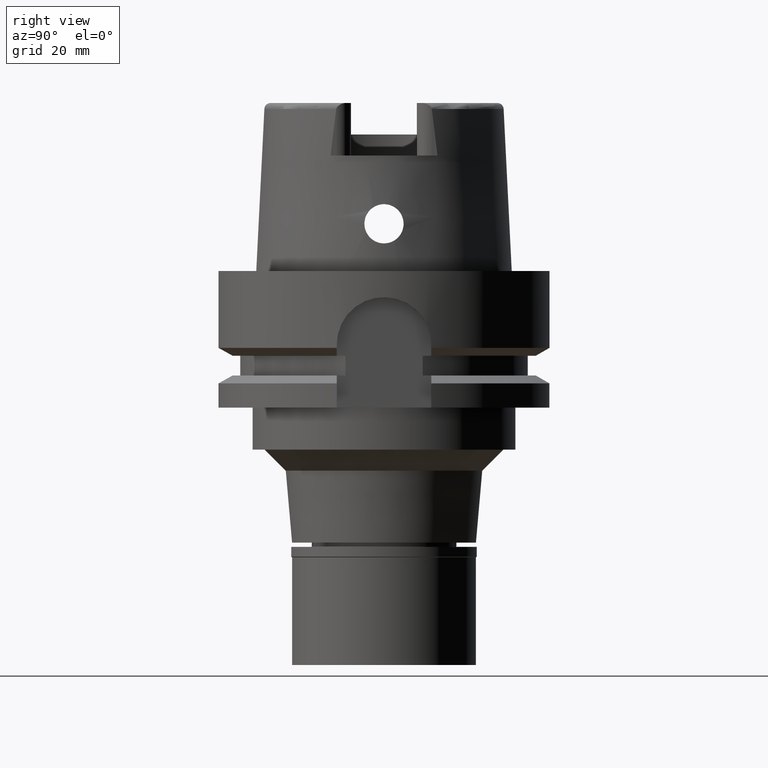
[diagram: clean part render]
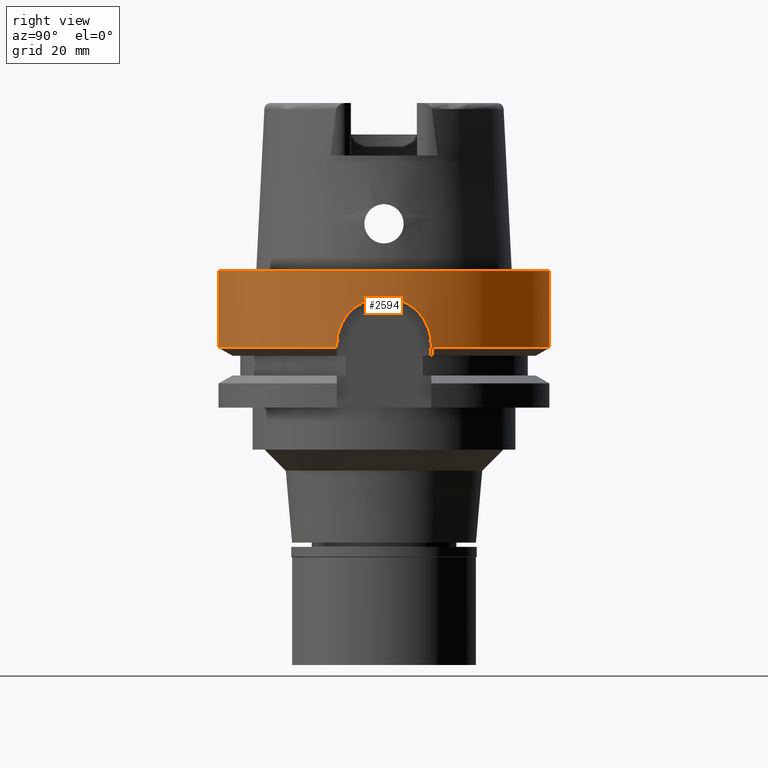
[diagram: same view with one face highlighted and labeled with its STEP entity id]
A machine part, right view. The second image highlights one B-rep face of the part: STEP entity #2594.
In plain terms, the highlighted cylindrical surface (partial cylindrical patch) has radius 31.5 mm, axis along (0, 0, 1).
Its self-contained STEP definition (entity closure, byte-faithful):
#37 = CIRCLE ( 'NONE', #2486, 31.50000000000000000 ) ;
#64 = CARTESIAN_POINT ( 'NONE',  ( 30.36287848479297224, -8.387431033270249969, -10.73303656616561952 ) ) ;
#94 = CARTESIAN_POINT ( 'NONE',  ( 30.19106359658149685, -8.986129158879876400, -13.42175932013739015 ) ) ;
#119 = CARTESIAN_POINT ( 'NONE',  ( 31.49999031882325085, 0.2924209201904520161, -5.000032043093928458 ) ) ;
#151 = CARTESIAN_POINT ( 'NONE',  ( 31.38211755303678530, 2.726251597276859062, -5.421492319282271488 ) ) ;
#182 = CARTESIAN_POINT ( 'NONE',  ( 31.02183776959089911, -5.469047412008488429, -6.850635129316813732 ) ) ;
#195 = CARTESIAN_POINT ( 'NONE',  ( 30.18691769625000276, -9.000000000000000000, -14.00000000000000000 ) ) ;
#204 = CARTESIAN_POINT ( 'NONE',  ( 30.34755049276824934, 8.443310014792217544, -10.86995471546083714 ) ) ;
#230 = AXIS2_PLACEMENT_3D ( 'NONE', #948, #4818, #1793 ) ;
#236 = CARTESIAN_POINT ( 'NONE',  ( 30.76206231618314746, 6.781080098566678593, -8.074795456225501766 ) ) ;
#318 = CARTESIAN_POINT ( 'NONE',  ( 30.46059799081073649, 8.025402280038237635, -9.923618010494802633 ) ) ;
#488 = LINE ( 'NONE', #4384, #1650 ) ;
#536 = CARTESIAN_POINT ( 'NONE',  ( 31.44449437632129829, -1.874642473555698574, -5.196201554992539329 ) ) ;
#561 = CARTESIAN_POINT ( 'NONE',  ( 30.93703797202973149, -5.933365912229709771, -7.226046771295218107 ) ) ;
#589 = CARTESIAN_POINT ( 'NONE',  ( 30.18691769625000276, -9.000000000000000000, -14.00000000000000000 ) ) ;
#595 = VECTOR ( 'NONE', #1205, 1000.000000000000114 ) ;
#622 = CARTESIAN_POINT ( 'NONE',  ( 30.67518755755893167, -7.169324049211633465, -8.526495340337897133 ) ) ;
#628 = CARTESIAN_POINT ( 'NONE',  ( 30.18691769625000276, -9.000000000000000000, -14.00000000000000000 ) ) ;
#637 = CARTESIAN_POINT ( 'NONE',  ( 30.18691748912999628, 9.000000694692998238, -14.62249532230999982 ) ) ;
#653 = CARTESIAN_POINT ( 'NONE',  ( 30.28451810380790477, 8.666017003472706648, -11.56621022822001699 ) ) ;
#680 = CARTESIAN_POINT ( 'NONE',  ( 30.25335232720717826, 8.774166223111565799, -11.99103338115816619 ) ) ;
#692 = CIRCLE ( 'NONE', #2304, 31.50000000000000000 ) ;
#858 = ORIENTED_EDGE ( 'NONE', *, *, #2251, .T. ) ;
#890 = DIRECTION ( 'NONE',  ( 0.0000000000000000000, -1.000000000000000000, 0.0000000000000000000 ) ) ;
#926 = CARTESIAN_POINT ( 'NONE',  ( 30.22789393550080916, -8.861449281331514882, -12.42008031659906209 ) ) ;
#948 = CARTESIAN_POINT ( 'NONE',  ( 0.0000000000000000000, 0.0000000000000000000, 0.0000000000000000000 ) ) ;
#985 = CARTESIAN_POINT ( 'NONE',  ( 30.18691769624741994, -8.999999999999158007, -13.71027116895141340 ) ) ;
#991 = VERTEX_POINT ( 'NONE', #628 ) ;
#1013 = CARTESIAN_POINT ( 'NONE',  ( 31.50001931037854774, -0.5817076309197510842, -4.999936095724136109 ) ) ;
#1034 = CYLINDRICAL_SURFACE ( 'NONE', #230, 31.50000000000000000 ) ;
#1131 = CARTESIAN_POINT ( 'NONE',  ( 30.39331615731986957, 8.276452089540036638, -10.46137309898281842 ) ) ;
#1139 = CIRCLE ( 'NONE', #2573, 31.49999999999999645 ) ;
#1174 = LINE ( 'NONE', #3811, #4244 ) ;
#1205 = DIRECTION ( 'NONE',  ( 3.327222575210074370E-07, -1.115981387722023927E-06, 0.9999999999993218758 ) ) ;
#1207 = CARTESIAN_POINT ( 'NONE',  ( 0.0000000000000000000, -31.50000000000000000, 0.0000000000000000000 ) ) ;
#1295 = ORIENTED_EDGE ( 'NONE', *, *, #1521, .F. ) ;
#1375 = CARTESIAN_POINT ( 'NONE',  ( 31.23407006720281487, -4.086595135954903313, -5.979805522582092969 ) ) ;
#1376 = EDGE_CURVE ( 'NONE', #5027, #2370, #37, .T. ) ;
#1430 = CARTESIAN_POINT ( 'NONE',  ( 31.46706413555622817, 1.447260997174596664, -5.115905977036445229 ) ) ;
#1461 = CARTESIAN_POINT ( 'NONE',  ( 31.41601185215447956, -2.303148286142977064, -5.298373050732673839 ) ) ;
#1493 = EDGE_CURVE ( 'NONE', #3274, #3006, #1139, .T. ) ;
#1521 = EDGE_CURVE ( 'NONE', #3274, #4132, #3791, .T. ) ;
#1553 = CARTESIAN_POINT ( 'NONE',  ( 30.80575863716062912, 6.580448024652612915, -7.852802294005259753 ) ) ;
#1561 = ORIENTED_EDGE ( 'NONE', *, *, #1376, .T. ) ;
#1578 = CARTESIAN_POINT ( 'NONE',  ( 30.55331565977451902, 7.666398337531234120, -9.276067100139572474 ) ) ;
#1605 = CARTESIAN_POINT ( 'NONE',  ( 30.67633611967691110, 7.158905469449802439, -8.537306880953943633 ) ) ;
#1609 = VECTOR ( 'NONE', #3215, 1000.000000000000227 ) ;
#1650 = VECTOR ( 'NONE', #5320, 1000.000000000000000 ) ;
#1655 = EDGE_CURVE ( 'NONE', #2226, #5315, #692, .T. ) ;
#1787 = ORIENTED_EDGE ( 'NONE', *, *, #4630, .T. ) ;
#1793 = DIRECTION ( 'NONE',  ( 0.0000000000000000000, 1.000000000000000000, 0.0000000000000000000 ) ) ;
#1800 = CARTESIAN_POINT ( 'NONE',  ( 30.44277093394749656, -8.093711098183355546, -10.05264505669014596 ) ) ;
#1825 = CARTESIAN_POINT ( 'NONE',  ( 31.06328920365342938, -5.228476073178597971, -6.672935710399508835 ) ) ;
#1852 = CARTESIAN_POINT ( 'NONE',  ( 30.20341519481720738, -8.944491050792668929, -12.99081702026822072 ) ) ;
#1883 = CARTESIAN_POINT ( 'NONE',  ( 31.34328433852340368, 3.141296993897372047, -5.564694286766345144 ) ) ;
#1912 = CARTESIAN_POINT ( 'NONE',  ( 30.40907111538115970, -8.218999378292146218, -10.32084764547474443 ) ) ;
#1940 = CARTESIAN_POINT ( 'NONE',  ( 30.93732522704016219, 5.943076094157568434, -7.214610457776481134 ) ) ;
#2023 = CARTESIAN_POINT ( 'NONE',  ( 31.14264547052491849, 4.733093353119703472, -6.343595145727646489 ) ) ;
#2052 = CARTESIAN_POINT ( 'NONE',  ( 30.63409167166683744, 7.336974085236779963, -8.779144812089088035 ) ) ;
#2226 = VERTEX_POINT ( 'NONE', #2340 ) ;
#2251 = EDGE_CURVE ( 'NONE', #991, #4132, #2264, .T. ) ;
#2257 = CARTESIAN_POINT ( 'NONE',  ( 31.48385943918589192, -1.159642441508196287, -5.055989086222346884 ) ) ;
#2264 = B_SPLINE_CURVE_WITH_KNOTS ( 'NONE', 3,
 ( #589, #985, #94, #1852, #3142, #4823, #926, #3563, #4455, #3970, #3198, #2647, #64, #1912, #1800, #2711, #4509, #622, #2284, #4905, #561, #3593, #182, #1825, #3539, #2682, #3650, #1375, #3109, #3621, #4929, #4847, #4022, #4423, #1461, #3168, #536, #2257, #1013, #119, #2738, #5332, #1430, #4080, #4481, #2767, #151, #4053, #1883, #5363, #5391, #2398, #2476, #4140, #2023, #5449, #3284, #1940, #1553, #236, #1605, #2052, #1578, #2799, #318, #5478, #5016, #1131, #204, #3707, #653, #4537, #680, #4107, #3227, #2913, #2857 ),
 .UNSPECIFIED., .F., .F.,
 ( 4, 2, 2, 2, 2, 2, 2, 2, 2, 2, 2, 2, 2, 2, 2, 2, 2, 2, 2, 2, 1, 2, 2, 2, 2, 2, 2, 2, 2, 2, 2, 2, 2, 2, 2, 2, 2, 2, 4 ),
 ( 0.0000000000000000000, 0.03125000000000038858, 0.04687500000000057593, 0.06250000000000076328, 0.09375000000000115186, 0.1093750000000012490, 0.1250000000000013323, 0.1562500000000013323, 0.1875000000000013323, 0.2500000000000012212, 0.2812500000000011657, 0.2968750000000011657, 0.3125000000000012212, 0.3437500000000013323, 0.3593750000000013323, 0.3750000000000013878, 0.4062500000000013878, 0.4218750000000013323, 0.4375000000000013323, 0.5000000000000013323, 0.5312500000000013323, 0.5468750000000013323, 0.5625000000000013323, 0.5937500000000013323, 0.6093750000000013323, 0.6250000000000013323, 0.6562500000000012212, 0.6718750000000012212, 0.6875000000000012212, 0.7500000000000013323, 0.7812500000000013323, 0.8125000000000014433, 0.8437500000000014433, 0.8593750000000015543, 0.8750000000000016653, 0.9062500000000014433, 0.9218750000000012212, 0.9375000000000009992, 1.000000000000000000 ),
 .UNSPECIFIED. ) ;
#2278 = FACE_OUTER_BOUND ( 'NONE', #5001, .T. ) ;
#2284 = CARTESIAN_POINT ( 'NONE',  ( 30.76248422660044213, -6.790190111668623629, -8.062639215868289355 ) ) ;
#2304 = AXIS2_PLACEMENT_3D ( 'NONE', #2730, #2702, #890 ) ;
#2324 = CARTESIAN_POINT ( 'NONE',  ( 0.0000000000000000000, 31.50000000000000000, 0.0000000000000000000 ) ) ;
#2340 = CARTESIAN_POINT ( 'NONE',  ( 0.0000000000000000000, -31.50000000000000000, -14.62250092523999889 ) ) ;
#2366 = DIRECTION ( 'NONE',  ( 0.0000000000000000000, 0.0000000000000000000, -1.000000000000000000 ) ) ;
#2370 = VERTEX_POINT ( 'NONE', #1207 ) ;
#2398 = CARTESIAN_POINT ( 'NONE',  ( 31.25150562826352285, 3.957645131250490778, -5.911338288936836882 ) ) ;
#2476 = CARTESIAN_POINT ( 'NONE',  ( 31.19851880251567877, 4.349691286016709846, -6.119383872667747859 ) ) ;
#2486 = AXIS2_PLACEMENT_3D ( 'NONE', #3341, #2366, #5387 ) ;
#2573 = AXIS2_PLACEMENT_3D ( 'NONE', #4329, #3843, #3418 ) ;
#2594 = ADVANCED_FACE ( 'NONE', ( #2278 ), #1034, .T. ) ;
#2630 = CARTESIAN_POINT ( 'NONE',  ( 30.18691774076999934, -8.999999850662000256, -14.62250212968000085 ) ) ;
#2647 = CARTESIAN_POINT ( 'NONE',  ( 30.34852748415904600, -8.439161142958083062, -10.86908815027823394 ) ) ;
#2682 = CARTESIAN_POINT ( 'NONE',  ( 31.14338118513525444, -4.733144220683403347, -6.339322956490708094 ) ) ;
#2702 = DIRECTION ( 'NONE',  ( 0.0000000000000000000, 0.0000000000000000000, 1.000000000000000000 ) ) ;
#2711 = CARTESIAN_POINT ( 'NONE',  ( 30.51502207986616710, -7.816897654628406578, -9.529419929139594458 ) ) ;
#2730 = CARTESIAN_POINT ( 'NONE',  ( 0.0000000000000000000, 0.0000000000000000000, -14.62250092523999889 ) ) ;
#2738 = CARTESIAN_POINT ( 'NONE',  ( 31.49391132536759486, 0.7276353567833587777, -5.021124744799935868 ) ) ;
#2767 = CARTESIAN_POINT ( 'NONE',  ( 31.41673170550969019, 2.306072089314919360, -5.295444306247435229 ) ) ;
#2799 = CARTESIAN_POINT ( 'NONE',  ( 30.51477324982812078, 7.817868019382205880, -9.531127756737843626 ) ) ;
#2857 = CARTESIAN_POINT ( 'NONE',  ( 30.18691769625000276, 9.000000000000000000, -14.00000000000000000 ) ) ;
#2913 = CARTESIAN_POINT ( 'NONE',  ( 30.18691769624740928, 8.999999999999172218, -13.42098225179139526 ) ) ;
#2980 = EDGE_CURVE ( 'NONE', #5027, #3006, #488, .T. ) ;
#3006 = VERTEX_POINT ( 'NONE', #5347 ) ;
#3092 = ORIENTED_EDGE ( 'NONE', *, *, #1493, .T. ) ;
#3109 = CARTESIAN_POINT ( 'NONE',  ( 31.25112480612928678, -3.954170433095382187, -5.913719207594341221 ) ) ;
#3142 = CARTESIAN_POINT ( 'NONE',  ( 30.20855272534156200, -8.927139172980618653, -12.84747383253714759 ) ) ;
#3168 = CARTESIAN_POINT ( 'NONE',  ( 31.43555752726934926, -2.018914478726842265, -5.228120817227556394 ) ) ;
#3198 = CARTESIAN_POINT ( 'NONE',  ( 30.32125366943010292, -8.536635002601574485, -11.14538626951618916 ) ) ;
#3215 = DIRECTION ( 'NONE',  ( 7.152302133194778631E-08, 2.398983733947923671E-07, -0.9999999999999685807 ) ) ;
#3227 = CARTESIAN_POINT ( 'NONE',  ( 30.20358588159592372, 8.944650085524848748, -12.84689954943860890 ) ) ;
#3274 = VERTEX_POINT ( 'NONE', #637 ) ;
#3284 = CARTESIAN_POINT ( 'NONE',  ( 31.02333757495930655, 5.482629359388679013, -6.837517695886665692 ) ) ;
#3287 = CARTESIAN_POINT ( 'NONE',  ( 30.18691769625000276, 9.000000000000000000, -14.00000000000000000 ) ) ;
#3341 = CARTESIAN_POINT ( 'NONE',  ( 0.0000000000000000000, 0.0000000000000000000, 0.0000000000000000000 ) ) ;
#3418 = DIRECTION ( 'NONE',  ( 0.9583148474999051425, 0.2857142857143015191, 0.0000000000000000000 ) ) ;
#3539 = CARTESIAN_POINT ( 'NONE',  ( 31.08392352818168547, -5.104449976075712492, -6.586058333070391235 ) ) ;
#3563 = CARTESIAN_POINT ( 'NONE',  ( 30.25249515276636103, -8.777240887536251535, -11.98853176837190304 ) ) ;
#3593 = CARTESIAN_POINT ( 'NONE',  ( 31.00080700023985969, -5.586926947498412233, -6.942343810796007375 ) ) ;
#3621 = CARTESIAN_POINT ( 'NONE',  ( 31.28390414570442957, -3.685865822925692648, -5.788010101834362153 ) ) ;
#3650 = CARTESIAN_POINT ( 'NONE',  ( 31.18110025080231296, -4.478678177988843601, -6.187759753868629531 ) ) ;
#3707 = CARTESIAN_POINT ( 'NONE',  ( 30.32020204393309371, 8.540661447011059337, -11.14616399777013811 ) ) ;
#3726 = DIRECTION ( 'NONE',  ( 0.0000000000000000000, -2.672583210395999918E-14, -1.000000000000000000 ) ) ;
#3791 = LINE ( 'NONE', #4733, #595 ) ;
#3811 = CARTESIAN_POINT ( 'NONE',  ( 0.0000000000000000000, -31.50000000000000000, 0.0000000000000000000 ) ) ;
#3843 = DIRECTION ( 'NONE',  ( 0.0000000000000000000, 0.0000000000000000000, 1.000000000000000000 ) ) ;
#3970 = CARTESIAN_POINT ( 'NONE',  ( 30.30845943766469475, -8.581909905082950374, -11.28448540521129040 ) ) ;
#4022 = CARTESIAN_POINT ( 'NONE',  ( 31.37074780668838869, -2.864471514059915513, -5.462888631947041773 ) ) ;
#4053 = CARTESIAN_POINT ( 'NONE',  ( 31.36972017033061277, 2.865288181762524644, -5.466939114517064269 ) ) ;
#4080 = CARTESIAN_POINT ( 'NONE',  ( 31.46020107462815218, 1.589521865135839152, -5.140256938760277450 ) ) ;
#4107 = CARTESIAN_POINT ( 'NONE',  ( 30.24411151958537758, 8.805938548479508299, -12.13546497881742425 ) ) ;
#4132 = VERTEX_POINT ( 'NONE', #3287 ) ;
#4140 = CARTESIAN_POINT ( 'NONE',  ( 31.18025461395482623, 4.478645085413770488, -6.191965538443851891 ) ) ;
#4244 = VECTOR ( 'NONE', #3726, 1000.000000000000000 ) ;
#4256 = ORIENTED_EDGE ( 'NONE', *, *, #1655, .T. ) ;
#4329 = CARTESIAN_POINT ( 'NONE',  ( 0.0000000000000000000, 0.0000000000000000000, -14.62250092523999889 ) ) ;
#4384 = CARTESIAN_POINT ( 'NONE',  ( 0.0000000000000000000, 31.50000000000000000, 0.0000000000000000000 ) ) ;
#4423 = CARTESIAN_POINT ( 'NONE',  ( 31.40534033408515313, -2.444248811334726490, -5.336929326657250172 ) ) ;
#4455 = CARTESIAN_POINT ( 'NONE',  ( 30.27274335888332857, -8.707386171595562274, -11.70463304052495879 ) ) ;
#4481 = CARTESIAN_POINT ( 'NONE',  ( 31.43637088382356026, 2.021858382233038931, -5.225135461116935609 ) ) ;
#4483 = EDGE_CURVE ( 'NONE', #991, #5315, #5378, .T. ) ;
#4509 = CARTESIAN_POINT ( 'NONE',  ( 30.55336174551466755, -7.666235764782239670, -9.275699644756551621 ) ) ;
#4537 = CARTESIAN_POINT ( 'NONE',  ( 30.27351147070839232, 8.704356563113213596, -11.70718102286762807 ) ) ;
#4630 = EDGE_CURVE ( 'NONE', #2370, #2226, #1174, .T. ) ;
#4733 = CARTESIAN_POINT ( 'NONE',  ( 30.18691748912999628, 9.000000694692998238, -14.62249532230999982 ) ) ;
#4818 = DIRECTION ( 'NONE',  ( 0.0000000000000000000, 0.0000000000000000000, 1.000000000000000000 ) ) ;
#4823 = CARTESIAN_POINT ( 'NONE',  ( 30.22083254316802936, -8.885479839114031719, -12.56139594819227767 ) ) ;
#4830 = ORIENTED_EDGE ( 'NONE', *, *, #4483, .F. ) ;
#4847 = CARTESIAN_POINT ( 'NONE',  ( 31.34424928004458266, -3.140513868137217113, -5.560582138828317866 ) ) ;
#4905 = CARTESIAN_POINT ( 'NONE',  ( 30.89362624915123234, -6.154724735019832416, -7.426617966376862334 ) ) ;
#4929 = CARTESIAN_POINT ( 'NONE',  ( 31.29981061360597039, -3.548316942408511032, -5.727703354182346551 ) ) ;
#5001 = EDGE_LOOP ( 'NONE', ( #1295, #3092, #5430, #1561, #1787, #4256, #4830, #858 ) ) ;
#5016 = CARTESIAN_POINT ( 'NONE',  ( 30.40957265889791827, 8.216574454876454325, -10.32435765496805047 ) ) ;
#5027 = VERTEX_POINT ( 'NONE', #2324 ) ;
#5315 = VERTEX_POINT ( 'NONE', #2630 ) ;
#5320 = DIRECTION ( 'NONE',  ( 0.0000000000000000000, 2.672583210395999918E-14, -1.000000000000000000 ) ) ;
#5332 = CARTESIAN_POINT ( 'NONE',  ( 31.47896895017220231, 1.159829099155598842, -5.073784538537621458 ) ) ;
#5347 = CARTESIAN_POINT ( 'NONE',  ( 0.0000000000000000000, 31.50000000000000000, -14.62250092523999889 ) ) ;
#5363 = CARTESIAN_POINT ( 'NONE',  ( 31.32942584901697458, 3.276618678999379863, -5.616325855238051723 ) ) ;
#5378 = LINE ( 'NONE', #195, #1609 ) ;
#5387 = DIRECTION ( 'NONE',  ( 0.0000000000000000000, 1.000000000000000000, 0.0000000000000000000 ) ) ;
#5391 = CARTESIAN_POINT ( 'NONE',  ( 31.28442408601322811, 3.689366557141910974, -5.785573784579411516 ) ) ;
#5430 = ORIENTED_EDGE ( 'NONE', *, *, #2980, .F. ) ;
#5449 = CARTESIAN_POINT ( 'NONE',  ( 31.12350949109509202, 4.857283257553383748, -6.421775784289372346 ) ) ;
#5478 = CARTESIAN_POINT ( 'NONE',  ( 30.44314436677369784, 8.091301881223746051, -10.05609797322371080 ) ) ;